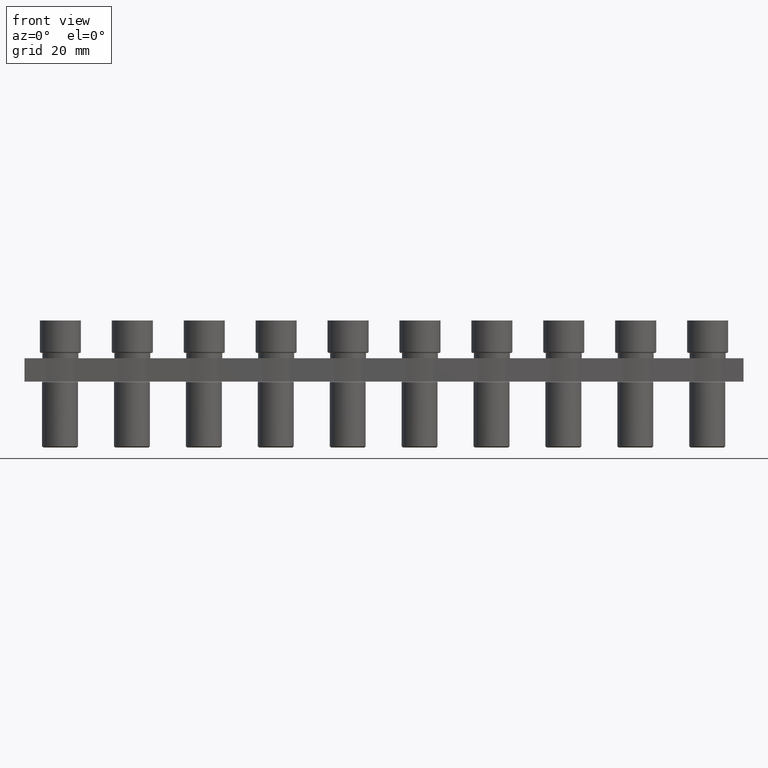
[diagram: clean part render]
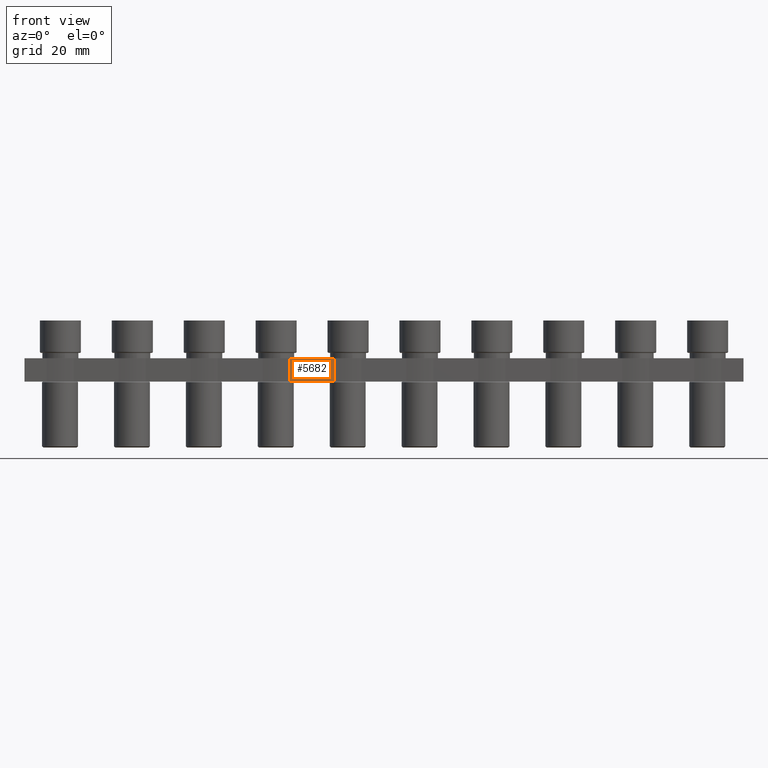
[diagram: same view with one face highlighted and labeled with its STEP entity id]
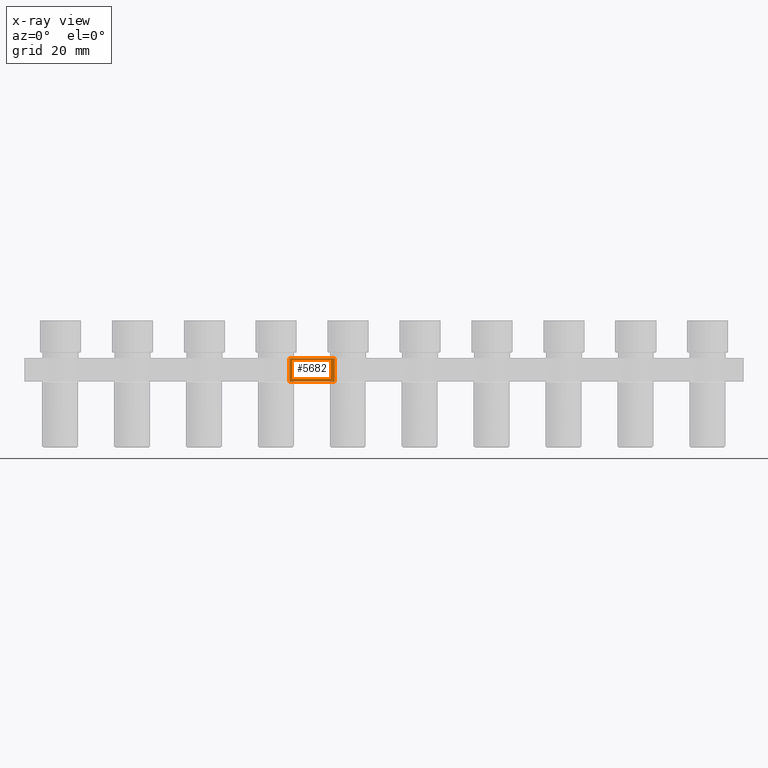
[diagram: x-ray of the same camera — body ghosted, the highlighted face saturated]
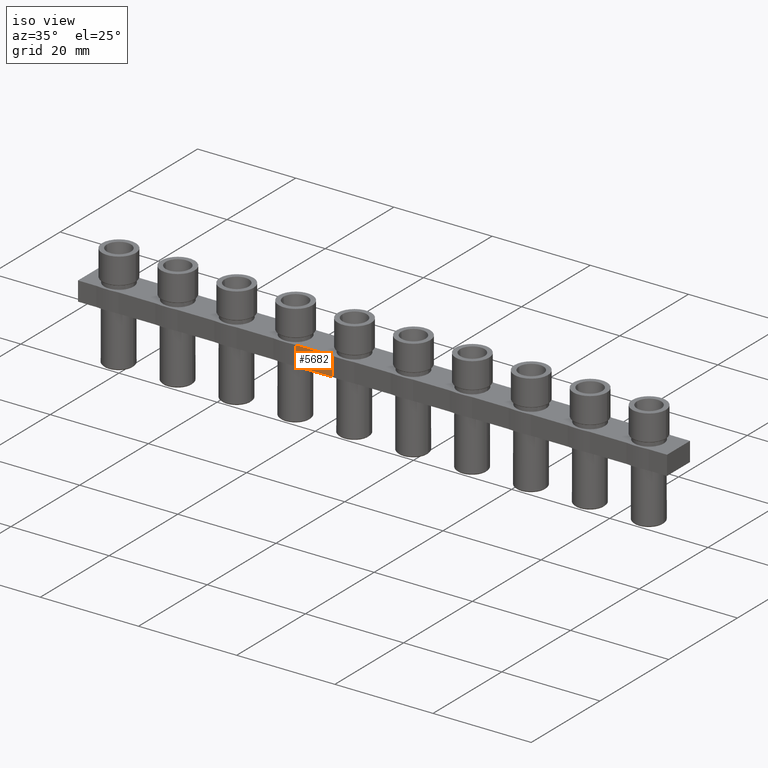
[diagram: same view with one face highlighted and labeled with its STEP entity id]
A machine part, front view. The second image highlights one B-rep face of the part: STEP entity #5682.
The next image is the same camera in x-ray: the body ghosted, the highlighted face saturated — about 0% of this face is hidden behind the body in this view.
A second angle (iso view) of the same face is appended — the face is thin or edge-on in the first view.
In plain terms, the highlighted planar face has unit normal (-0, 1, 0).
Its self-contained STEP definition (entity closure, byte-faithful):
#10 = ORIENTED_EDGE ( 'NONE', *, *, #8984, .F. ) ;
#29 = ORIENTED_EDGE ( 'NONE', *, *, #15800, .F. ) ;
#44 = ORIENTED_EDGE ( 'NONE', *, *, #15841, .F. ) ;
#52 = ORIENTED_EDGE ( 'NONE', *, *, #8829, .F. ) ;
#1609 = CARTESIAN_POINT ( 'NONE',  ( 45.74999999999838000, -3.349999999999911300, -0.9000000000000014700 ) ) ;
#1632 = CARTESIAN_POINT ( 'NONE',  ( 38.25000000000154200, -3.349999999999925500, -0.9000000000000014700 ) ) ;
#1663 = CARTESIAN_POINT ( 'NONE',  ( 45.74999999999837300, -3.349999999999911700, -4.800000000000001600 ) ) ;
#1709 = CARTESIAN_POINT ( 'NONE',  ( 38.25000000000155600, -3.349999999999923700, -4.800000000000001600 ) ) ;
#2836 = AXIS2_PLACEMENT_3D ( 'NONE', #16894, #16836, #16868 ) ;
#3744 = VERTEX_POINT ( 'NONE', #1632 ) ;
#3758 = VERTEX_POINT ( 'NONE', #1609 ) ;
#3820 = VERTEX_POINT ( 'NONE', #1663 ) ;
#3854 = VERTEX_POINT ( 'NONE', #1709 ) ;
#4670 = EDGE_LOOP ( 'NONE', ( #52, #44, #10, #29 ) ) ;
#5682 = ADVANCED_FACE ( 'NONE', ( #16890 ), #16901, .F. ) ;
#8829 = EDGE_CURVE ( 'NONE', #3820, #3854, #11446, .T. ) ;
#8984 = EDGE_CURVE ( 'NONE', #3744, #3758, #11967, .T. ) ;
#11417 = CARTESIAN_POINT ( 'NONE',  ( -41.85000000000004400, -3.349999999999909900, -4.800000000000001600 ) ) ;
#11446 = LINE ( 'NONE', #11417, #16588 ) ;
#11450 = DIRECTION ( 'NONE',  ( -1.000000000000000000, 0.0000000000000000000, -0.0000000000000000000 ) ) ;
#11945 = CARTESIAN_POINT ( 'NONE',  ( 52.15000000000000600, -3.349999999999909900, -0.9000000000000014700 ) ) ;
#11967 = LINE ( 'NONE', #11945, #16889 ) ;
#11978 = DIRECTION ( 'NONE',  ( 1.000000000000000000, 1.245679091791856200E-016, -0.0000000000000000000 ) ) ;
#14824 = LINE ( 'NONE', #14851, #15496 ) ;
#14843 = DIRECTION ( 'NONE',  ( 0.0000000000000000000, 0.0000000000000000000, 1.000000000000000000 ) ) ;
#14851 = CARTESIAN_POINT ( 'NONE',  ( 38.25000000000145000, -3.349999999999937500, -9.302499305941093900 ) ) ;
#15200 = DIRECTION ( 'NONE',  ( -0.0000000000000000000, -0.0000000000000000000, -1.000000000000000000 ) ) ;
#15201 = CARTESIAN_POINT ( 'NONE',  ( 45.74999999999838000, -3.349999999999910400, -0.9000000000000014700 ) ) ;
#15244 = LINE ( 'NONE', #15201, #15554 ) ;
#15496 = VECTOR ( 'NONE', #14843, 1000.000000000000000 ) ;
#15554 = VECTOR ( 'NONE', #15200, 1000.000000000000000 ) ;
#15800 = EDGE_CURVE ( 'NONE', #3854, #3744, #14824, .T. ) ;
#15841 = EDGE_CURVE ( 'NONE', #3758, #3820, #15244, .T. ) ;
#16588 = VECTOR ( 'NONE', #11450, 1000.000000000000000 ) ;
#16836 = DIRECTION ( 'NONE',  ( -1.245679091791856200E-016, 1.000000000000000000, 0.0000000000000000000 ) ) ;
#16868 = DIRECTION ( 'NONE',  ( -1.000000000000000000, -1.245679091791856200E-016, 0.0000000000000000000 ) ) ;
#16889 = VECTOR ( 'NONE', #11978, 1000.000000000000000 ) ;
#16890 = FACE_OUTER_BOUND ( 'NONE', #4670, .T. ) ;
#16894 = CARTESIAN_POINT ( 'NONE',  ( 52.15000000000000600, -3.349999999999909900, -0.9000000000000014700 ) ) ;
#16901 = PLANE ( 'NONE',  #2836 ) ;